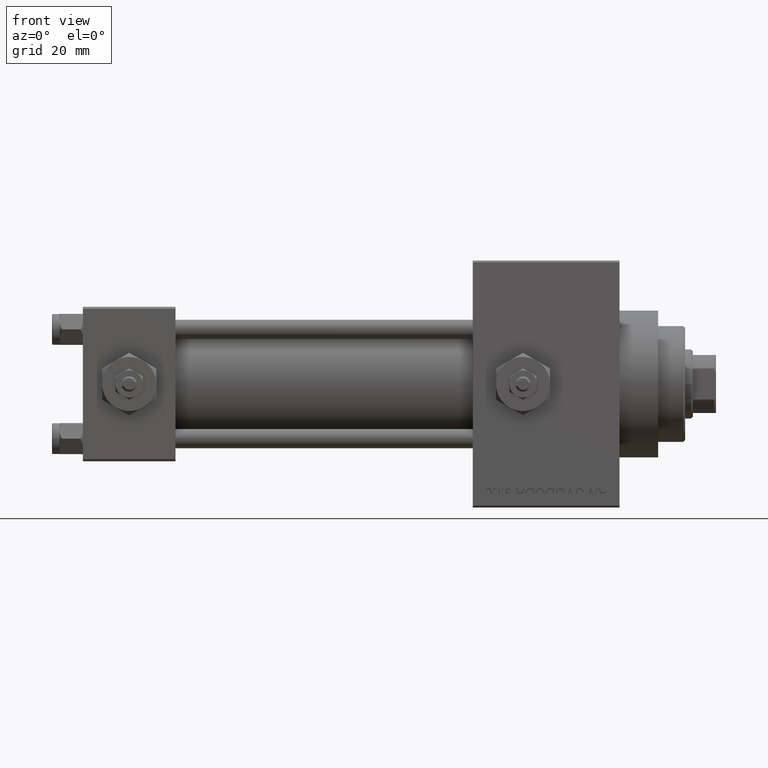
[diagram: clean part render]
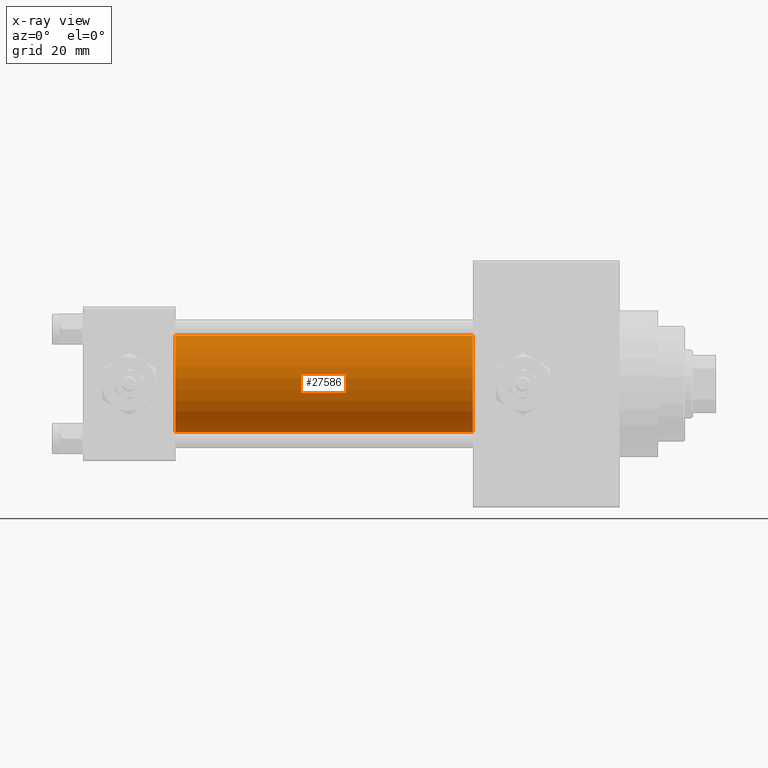
[diagram: x-ray — body ghosted, one internal face saturated and labeled with its STEP entity id]
A machine part, front view, then the same camera in x-ray: the body is ghosted and one INTERNAL B-rep face — a face not visible from any outside direction — is saturated and labeled: STEP entity #27586.
In plain terms, the highlighted cylindrical surface (partial cylindrical patch) has radius 12.5 mm, axis along (-1, -0, -0).
Its self-contained STEP definition (entity closure, byte-faithful):
#3115 = DIRECTION ( 'NONE',  ( 0.000000000000000000, 0.000000000000000000, 1.000000000000000000 ) ) ;
#5424 = EDGE_LOOP ( 'NONE', ( #24421, #21766, #44717, #47467 ) ) ;
#5762 = DIRECTION ( 'NONE',  ( 1.000000000000000000, 0.000000000000000000, 0.000000000000000000 ) ) ;
#6071 = CARTESIAN_POINT ( 'NONE',  ( 101.0000000000000000, -2.602085213965210642E-15, 12.49999999999999645 ) ) ;
#6148 = DIRECTION ( 'NONE',  ( 1.000000000000000000, 0.000000000000000000, 0.000000000000000000 ) ) ;
#6610 = VERTEX_POINT ( 'NONE', #20716 ) ;
#13427 = EDGE_CURVE ( 'NONE', #37126, #6610, #36915, .T. ) ;
#14272 = FACE_OUTER_BOUND ( 'NONE', #5424, .T. ) ;
#14316 = EDGE_CURVE ( 'NONE', #35671, #37126, #25121, .T. ) ;
#16261 = CIRCLE ( 'NONE', #45563, 12.49999999999999645 ) ;
#18254 = CARTESIAN_POINT ( 'NONE',  ( 101.0000000000000000, -2.602085213965210642E-15, 0.000000000000000000 ) ) ;
#20716 = CARTESIAN_POINT ( 'NONE',  ( 24.00000000000000000, -1.071276715031019515E-15, -12.49999999999999645 ) ) ;
#21766 = ORIENTED_EDGE ( 'NONE', *, *, #42503, .T. ) ;
#23214 = DIRECTION ( 'NONE',  ( -1.000000000000000000, -0.000000000000000000, -0.000000000000000000 ) ) ;
#24421 = ORIENTED_EDGE ( 'NONE', *, *, #32484, .T. ) ;
#24811 = CARTESIAN_POINT ( 'NONE',  ( 24.00000000000000000, -2.602085213965210642E-15, 0.000000000000000000 ) ) ;
#25121 = LINE ( 'NONE', #6071, #44871 ) ;
#27586 = ADVANCED_FACE ( 'NONE', ( #14272 ), #29605, .F. ) ;
#27858 = DIRECTION ( 'NONE',  ( -1.000000000000000000, -0.000000000000000000, -0.000000000000000000 ) ) ;
#28067 = CARTESIAN_POINT ( 'NONE',  ( 24.00000000000000000, -2.602085213965210642E-15, 12.49999999999999645 ) ) ;
#29365 = CARTESIAN_POINT ( 'NONE',  ( 101.0000000000000000, -2.602085213965210642E-15, 0.000000000000000000 ) ) ;
#29605 = CYLINDRICAL_SURFACE ( 'NONE', #31930, 12.49999999999999645 ) ;
#31178 = CARTESIAN_POINT ( 'NONE',  ( 101.0000000000000000, -2.602085213965210642E-15, 12.49999999999999645 ) ) ;
#31830 = VERTEX_POINT ( 'NONE', #47648 ) ;
#31930 = AXIS2_PLACEMENT_3D ( 'NONE', #29365, #37036, #3115 ) ;
#32484 = EDGE_CURVE ( 'NONE', #35671, #31830, #16261, .T. ) ;
#32880 = DIRECTION ( 'NONE',  ( 0.000000000000000000, 0.000000000000000000, -1.000000000000000000 ) ) ;
#35671 = VERTEX_POINT ( 'NONE', #31178 ) ;
#36915 = CIRCLE ( 'NONE', #37691, 12.49999999999999645 ) ;
#37036 = DIRECTION ( 'NONE',  ( -1.000000000000000000, -0.000000000000000000, -0.000000000000000000 ) ) ;
#37126 = VERTEX_POINT ( 'NONE', #28067 ) ;
#37691 = AXIS2_PLACEMENT_3D ( 'NONE', #24811, #5762, #47877 ) ;
#42503 = EDGE_CURVE ( 'NONE', #31830, #6610, #49040, .T. ) ;
#44717 = ORIENTED_EDGE ( 'NONE', *, *, #13427, .F. ) ;
#44871 = VECTOR ( 'NONE', #27858, 1000.000000000000000 ) ;
#45306 = CARTESIAN_POINT ( 'NONE',  ( 101.0000000000000000, -1.071276715031019515E-15, -12.49999999999999645 ) ) ;
#45563 = AXIS2_PLACEMENT_3D ( 'NONE', #18254, #6148, #32880 ) ;
#47467 = ORIENTED_EDGE ( 'NONE', *, *, #14316, .F. ) ;
#47648 = CARTESIAN_POINT ( 'NONE',  ( 101.0000000000000000, -1.071276715031019515E-15, -12.49999999999999645 ) ) ;
#47877 = DIRECTION ( 'NONE',  ( 0.000000000000000000, 0.000000000000000000, -1.000000000000000000 ) ) ;
#48965 = VECTOR ( 'NONE', #23214, 1000.000000000000000 ) ;
#49040 = LINE ( 'NONE', #45306, #48965 ) ;